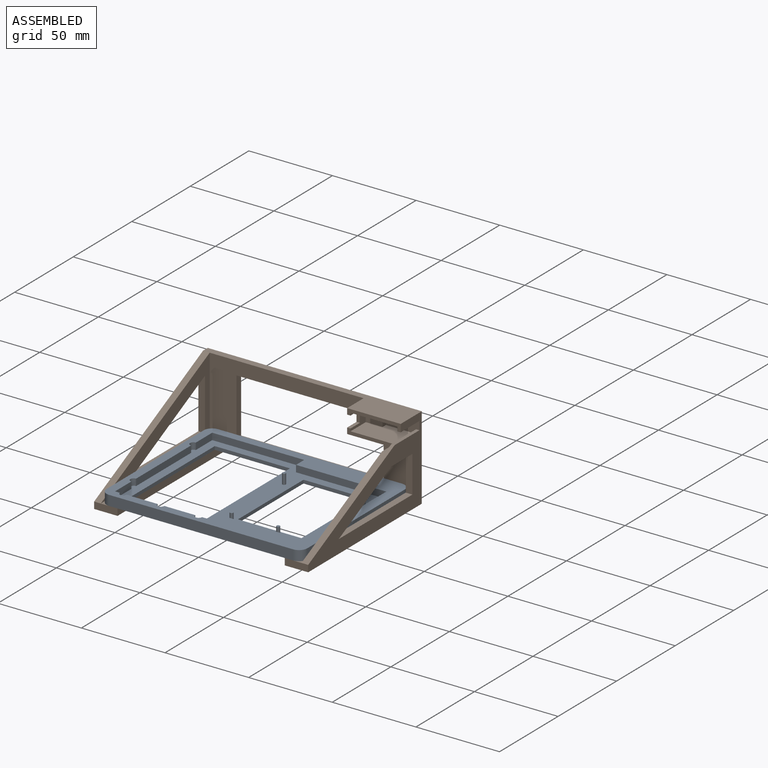
[diagram: assembled view]
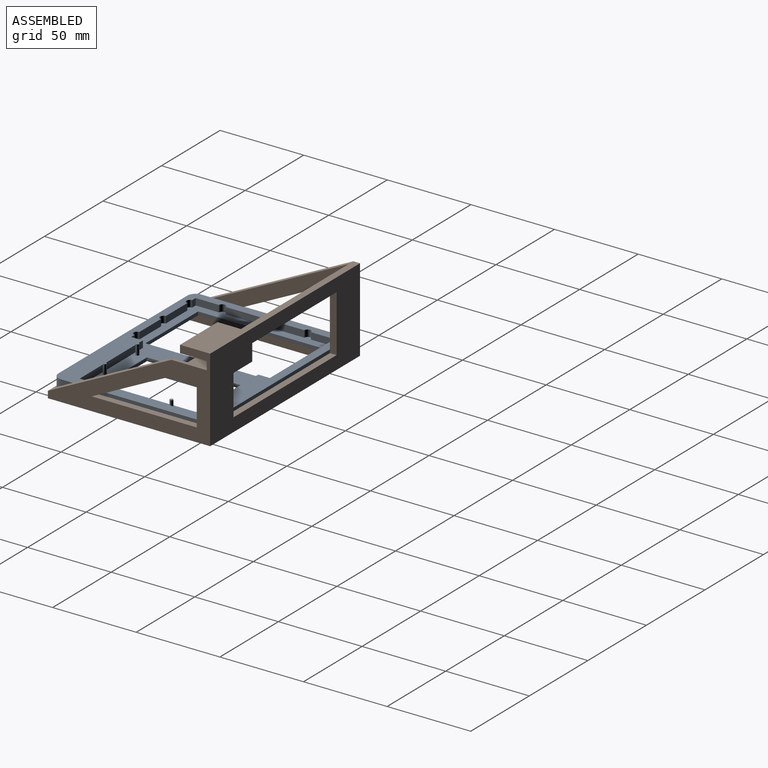
[diagram: assembled view, second angle]
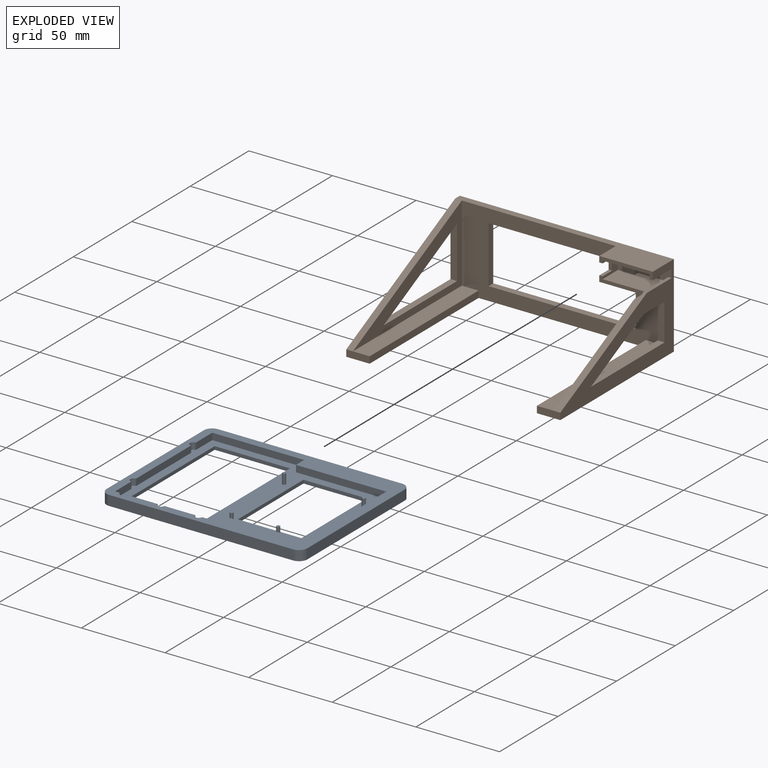
[diagram: exploded view]
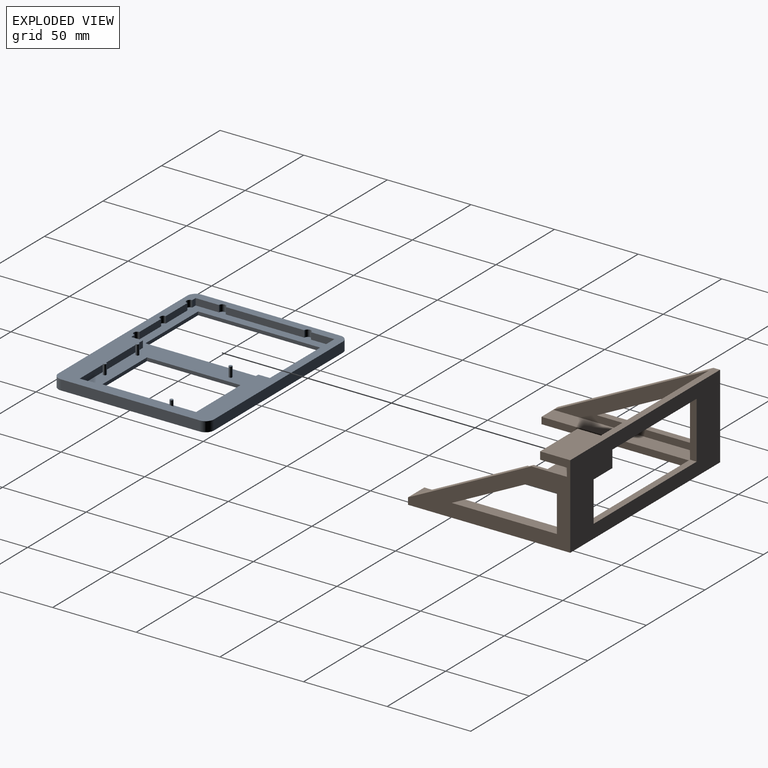
[diagram: exploded view, second angle]
ASSEMBLY  parts=2 mates=3
PART A: 45 faces, bbox 93x120x8 mm
  f0: plane 111x85mm, normal (0,0,1), area 2896.8mm2, adj f2,f3,f4,f5,f6,f11,f12,f13
  f1: plane 120x93mm, normal (0,0,-1), area 5725.5mm2, adj f8,f9,f10,f22,f28,f29,f30,f31
  f2: plane 14x4mm, normal (0,1,0), area 56mm2, adj f0,f7,f25,f36
  f3: plane 47x4mm, normal (0,1,0), area 188mm2, adj f0,f7,f35,f36
  f4: plane 18.5x4mm, normal (-1,0,0), area 74mm2, adj f0,f7,f33,f34
  f5: plane 18.5x4mm, normal (-1,0,0), area 74mm2, adj f0,f7,f32,f33
  f6: plane 4x3mm, normal (-1,0,0), area 12mm2, adj f0,f7,f24,f32
  f7: plane 120x93mm, normal (0,0,1), area 2816.1mm2, adj f2,f3,f4,f5,f6,f8,f9,f10
  f8: plane 110x6mm, normal (-1,0,0), area 660mm2, adj f1,f7,f28,f31
  f9: plane 110x6mm, normal (1,0,0), area 660mm2, adj f1,f7,f29,f30
  f10: plane 83x6mm, normal (0,1,0), area 498mm2, adj f1,f7,f30,f31
  f11: plane 54x4mm, normal (1,0,0), area 216mm2, adj f0,f7,f13,f23
  f12: plane 54x4mm, normal (-1,0,0), area 216mm2, adj f0,f7,f13,f24
  f13: plane 69x4mm, normal (0,-1,0), area 276mm2, adj f0,f7,f11,f12
  f14: cylinder r=1mm len=6mm, axis (0,0,-1), area 37.7mm2, adj f0,f15
  f15: plane 2x2mm, normal (0,0,1), area 3.1mm2, adj f14
  f16: cylinder r=1mm len=6mm, axis (0,0,-1), area 37.7mm2, adj f0,f17
  f17: plane 2x2mm, normal (0,0,1), area 3.1mm2, adj f16
  f18: cylinder r=1mm len=6mm, axis (0,0,-1), area 37.7mm2, adj f0,f19
  f19: plane 2x2mm, normal (0,0,1), area 3.1mm2, adj f18
  f20: cylinder r=1mm len=6mm, axis (0,0,-1), area 37.7mm2, adj f0,f21
  f21: plane 2x2mm, normal (0,0,1), area 3.1mm2, adj f20
  f22: plane 83x6mm, normal (0,-1,0), area 498mm2, adj f1,f7,f28,f29
  f23: plane 7x4mm, normal (0,-1,0), area 28mm2, adj f0,f7,f11,f25
  f24: plane 7x4mm, normal (0,-1,0), area 28mm2, adj f0,f6,f7,f12
  f25: plane 55x4mm, normal (1,0,0), area 220mm2, adj f0,f2,f7,f23
  f26: plane 14x4mm, normal (0,1,0), area 56mm2, adj f0,f7,f27,f35
  f27: plane 4x3mm, normal (-1,0,0), area 12mm2, adj f0,f7,f26,f34
  f28: cylinder r=5mm len=6mm, axis (0,0,-1), area 47.1mm2, adj f1,f7,f8,f22
  f29: cylinder r=5mm len=6mm, axis (0,0,1), area 47.1mm2, adj f1,f7,f9,f22
  f30: cylinder r=5mm len=6mm, axis (0,0,1), area 47.1mm2, adj f1,f7,f9,f10
  f31: cylinder r=5mm len=6mm, axis (0,0,-1), area 47.1mm2, adj f1,f7,f8,f10
  f32: cylinder r=2mm len=4mm, axis (0,0,1), area 25.1mm2, adj f0,f5,f6,f7
  f33: cylinder r=2mm len=4mm, axis (0,0,1), area 25.1mm2, adj f0,f4,f5,f7
  f34: cylinder r=2mm len=4mm, axis (0,0,1), area 25.1mm2, adj f0,f4,f7,f27
  f35: cylinder r=2mm len=4mm, axis (0,0,1), area 25.1mm2, adj f0,f3,f7,f26
  f36: cylinder r=2mm len=4mm, axis (0,0,1), area 25.1mm2, adj f0,f2,f3,f7
  f37: plane 45x2mm, normal (1,0,0), area 90mm2, adj f0,f1,f38,f40
  f38: plane 73x2mm, normal (0,1,0), area 146mm2, adj f0,f1,f37,f39
  f39: plane 45x2mm, normal (-1,0,0), area 90mm2, adj f0,f1,f38,f40
  f40: plane 73x2mm, normal (0,-1,0), area 146mm2, adj f0,f1,f37,f39
  f41: plane 56x2mm, normal (0,-1,0), area 112mm2, adj f0,f1,f42,f44
  f42: plane 38x2mm, normal (1,0,0), area 76mm2, adj f0,f1,f41,f43
  f43: plane 56x2mm, normal (0,1,0), area 112mm2, adj f0,f1,f42,f44
  f44: plane 38x2mm, normal (-1,0,0), area 76mm2, adj f0,f1,f41,f43
PART B: 46 faces, bbox 128x97x50 mm
  f0: plane 120x50mm, normal (0,-1,0), area 2696mm2, adj f12,f13,f14,f15,f16,f17,f19,f20
  f1: plane 128x50mm, normal (0,1,0), area 3568mm2, adj f2,f11,f12,f15,f33,f34,f35,f36
  f2: plane 97x50mm, normal (1,0,0), area 1778.9mm2, adj f1,f3,f9,f10,f12,f15,f21,f31
  f3: plane 32x4.5mm, normal (0,-1,0), area 72mm2, adj f2,f4,f6,f7,f12,f24,f28,f31
  f4: plane 16x2.5mm, normal (-1,0,0), area 40mm2, adj f3,f7,f9,f31
  f5: plane 28x3.5mm, normal (0,-1,0), area 59mm2, adj f6,f8,f14,f23,f24,f29
  f6: plane 13x10mm, normal (1,0,0), area 74mm2, adj f3,f5,f7,f8,f27,f28,f29,f30
  f7: plane 28x16mm, normal (0,0,-1), area 418mm2, adj f3,f4,f6,f9,f26,f27
  f8: plane 28x26.26mm, normal (0,0,1), area 438.5mm2, adj f5,f6,f9,f10,f14,f25,f26,f27
  f9: plane 20x10mm, normal (0,-1,0), area 190mm2, adj f2,f4,f7,f8,f25,f26,f31,f32
  f10: plane 73.79x36.5mm, normal (0,-0.44,0.9), area 318mm2, adj f2,f8,f14,f21,f25,f32
  f11: plane 97x50mm, normal (-1,0,0), area 1733.5mm2, adj f1,f12,f15,f18,f22,f39,f40,f41
  f12: plane 128x18mm, normal (0,0,1), area 960mm2, adj f0,f1,f2,f3,f11,f22,f24
  f13: plane 93x46mm, normal (1,0,0), area 1161.5mm2, adj f0,f16,f22,f39,f40,f41
  f14: plane 93x34mm, normal (-1,0,0), area 1071.6mm2, adj f0,f5,f8,f10,f19,f23,f42,f43
  f15: plane 128x97mm, normal (0,0,-1), area 3116mm2, adj f0,f1,f2,f11,f17,f18,f20,f21
  f16: plane 93x10mm, normal (0,0,1), area 930mm2, adj f0,f13,f17,f18
  f17: plane 93x4mm, normal (1,0,0), area 372mm2, adj f0,f15,f16,f18
  f18: plane 14x4mm, normal (0,-1,0), area 56mm2, adj f11,f15,f16,f17,f22
  f19: plane 93x10mm, normal (0,0,1), area 930mm2, adj f0,f14,f20,f21
  f20: plane 93x4mm, normal (-1,0,0), area 372mm2, adj f0,f15,f19,f21
  f21: plane 14x4mm, normal (0,-1,0), area 56mm2, adj f2,f10,f15,f19,f20
  f22: plane 93x46mm, normal (0,-0.44,0.9), area 415mm2, adj f11,f12,f13,f18
  f23: plane 28x14mm, normal (0,0,-1), area 392mm2, adj f0,f5,f14,f24
  f24: plane 14x14mm, normal (-1,0,0), area 140mm2, adj f0,f3,f5,f12,f23,f28,f29,f30
  f25: plane 26.26x2.5mm, normal (-1,0,0), area 59.3mm2, adj f8,f9,f10,f32
  f26: plane 10x3mm, normal (1,0,0), area 30mm2, adj f7,f8,f9,f27
  f27: plane 10x10mm, normal (0,-1,0), area 100mm2, adj f6,f7,f8,f26
  f28: plane 8x2mm, normal (0,0,-1), area 16mm2, adj f3,f6,f24,f30
  f29: plane 8x2mm, normal (0,0,1), area 16mm2, adj f5,f6,f24,f30
  f30: plane 7x2mm, normal (0,-1,0), area 14mm2, adj f6,f24,f28,f29
  f31: plane 16x2mm, normal (0,0,-1), area 32mm2, adj f2,f3,f4,f9
  f32: plane 21.21x2mm, normal (0,0,1), area 42.4mm2, adj f2,f9,f10,f25
  f33: plane 72x4mm, normal (0,0,-1), area 288mm2, adj f0,f1,f34,f38
  f34: plane 34x4mm, normal (1,0,0), area 136mm2, adj f0,f1,f33,f35
  f35: plane 88x4mm, normal (0,0,1), area 352mm2, adj f0,f1,f34,f36
  f36: plane 24x4mm, normal (-1,0,0), area 96mm2, adj f0,f1,f35,f37
  f37: plane 16x4mm, normal (0,0,-1), area 64mm2, adj f0,f1,f36,f38
  f38: plane 10x4mm, normal (-1,0,0), area 40mm2, adj f0,f1,f33,f37
  f39: plane 31.1x4mm, normal (0,-1,0), area 124.4mm2, adj f11,f13,f40,f41
  f40: plane 62.87x31.1mm, normal (0,0.44,-0.9), area 280.6mm2, adj f11,f13,f39,f41
  f41: plane 62.87x4mm, normal (0,0,1), area 251.5mm2, adj f11,f13,f39,f40
  f42: plane 62.87x4mm, normal (0,0,1), area 251.5mm2, adj f2,f14,f43,f45
  f43: plane 44.48x22mm, normal (0,0.44,-0.9), area 198.5mm2, adj f2,f14,f42,f44
  f44: plane 18.39x4mm, normal (0,0,-1), area 73.6mm2, adj f2,f14,f43,f45
  f45: plane 22x4mm, normal (0,-1,0), area 88mm2, adj f2,f14,f42,f44
PLACE A rot(axis=(0,0,-1),90deg) t=(43.09,-6.88,1.91)mm
PLACE B t=(-20.91,9.12,-2.09)mm
MATE planar A.f8 <-> B.f0  axis (0,1,0) through (43.09,5.12,4.91)mm
MATE planar A.f1 <-> B.f16  axis (0,0,-1) through (48.84,-41.93,1.91)mm
MATE planar A.f10 <-> B.f14  axis (1,0,0) through (103.09,-41.38,4.91)mm
